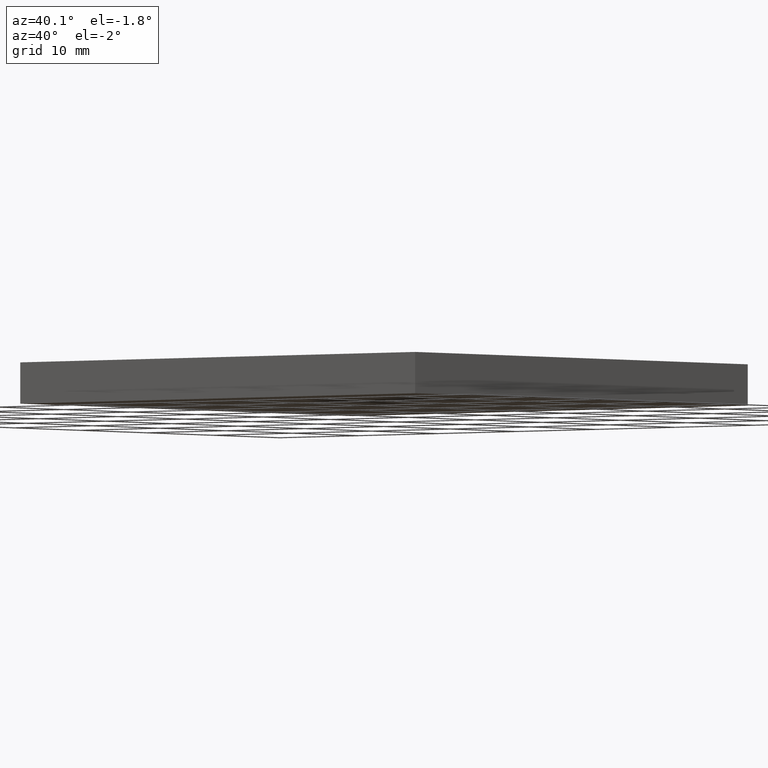
[diagram: clean part render]
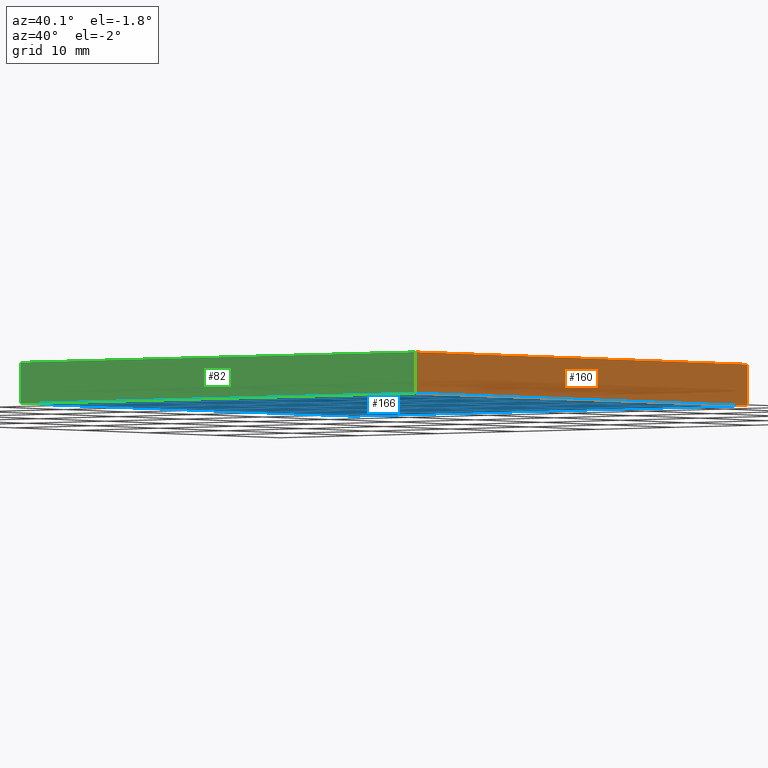
[diagram: same view with three faces highlighted in distinct colors, each labeled with its STEP entity id]
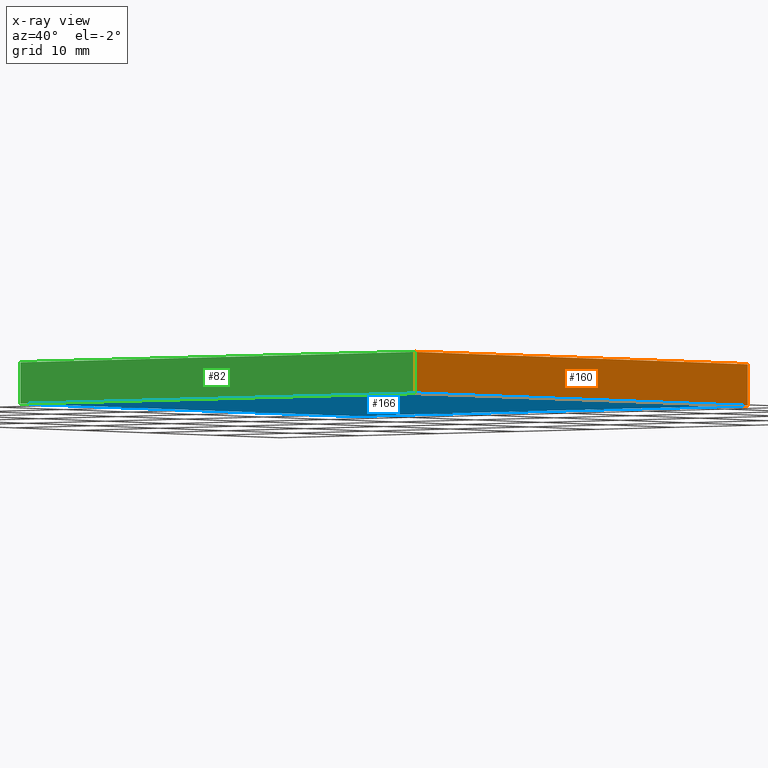
[diagram: x-ray of the same camera — body ghosted, the three highlighted faces saturated]
A machine part, auxiliary view with three faces highlighted in distinct colors.
The next image is the same camera in x-ray (body ghosted, the three faces saturated) — at least one of them is partly hidden behind the body in this view.
Their STEP definitions:

[orange] entity #160 — the highlighted planar face has unit normal (-1, 0, 0).
#2 = EDGE_CURVE ( 'NONE', #37, #93, #5, .T. ) ;
#3 = ORIENTED_EDGE ( 'NONE', *, *, #118, .T. ) ;
#4 = LINE ( 'NONE', #100, #159 ) ;
#5 = LINE ( 'NONE', #7, #144 ) ;
#7 = CARTESIAN_POINT ( 'NONE',  ( 466.6175434576859400, 179.3843025342640100, 4.000000000000000000 ) ) ;
#11 = DIRECTION ( 'NONE',  ( -0.0000000000000000000, 1.000000000000000000, -0.0000000000000000000 ) ) ;
#24 = VECTOR ( 'NONE', #91, 1000.000000000000000 ) ;
#33 = CARTESIAN_POINT ( 'NONE',  ( 466.6175434576859400, 179.3843025342640100, 4.000000000000000000 ) ) ;
#36 = PLANE ( 'NONE',  #55 ) ;
#37 = VERTEX_POINT ( 'NONE', #177 ) ;
#39 = EDGE_LOOP ( 'NONE', ( #87, #149, #124, #3 ) ) ;
#55 = AXIS2_PLACEMENT_3D ( 'NONE', #33, #79, #187 ) ;
#56 = EDGE_CURVE ( 'NONE', #93, #148, #146, .T. ) ;
#63 = CARTESIAN_POINT ( 'NONE',  ( 466.6175434576859400, 129.3843025342640100, 4.000000000000000000 ) ) ;
#67 = CARTESIAN_POINT ( 'NONE',  ( 466.6175434576859400, 179.3843025342640100, 0.0000000000000000000 ) ) ;
#79 = DIRECTION ( 'NONE',  ( -1.000000000000000000, 0.0000000000000000000, 0.0000000000000000000 ) ) ;
#85 = LINE ( 'NONE', #63, #90 ) ;
#87 = ORIENTED_EDGE ( 'NONE', *, *, #170, .T. ) ;
#90 = VECTOR ( 'NONE', #94, 1000.000000000000000 ) ;
#91 = DIRECTION ( 'NONE',  ( -0.0000000000000000000, -0.0000000000000000000, -1.000000000000000000 ) ) ;
#93 = VERTEX_POINT ( 'NONE', #111 ) ;
#94 = DIRECTION ( 'NONE',  ( -0.0000000000000000000, -0.0000000000000000000, -1.000000000000000000 ) ) ;
#97 = DIRECTION ( 'NONE',  ( -0.0000000000000000000, 1.000000000000000000, -0.0000000000000000000 ) ) ;
#100 = CARTESIAN_POINT ( 'NONE',  ( 466.6175434576859400, 179.3843025342640100, 0.0000000000000000000 ) ) ;
#111 = CARTESIAN_POINT ( 'NONE',  ( 466.6175434576859400, 179.3843025342640100, 4.000000000000000000 ) ) ;
#115 = CARTESIAN_POINT ( 'NONE',  ( 466.6175434576859400, 129.3843025342640100, 0.0000000000000000000 ) ) ;
#118 = EDGE_CURVE ( 'NONE', #37, #176, #85, .T. ) ;
#124 = ORIENTED_EDGE ( 'NONE', *, *, #2, .F. ) ;
#144 = VECTOR ( 'NONE', #11, 1000.000000000000000 ) ;
#146 = LINE ( 'NONE', #179, #24 ) ;
#148 = VERTEX_POINT ( 'NONE', #67 ) ;
#149 = ORIENTED_EDGE ( 'NONE', *, *, #56, .F. ) ;
#159 = VECTOR ( 'NONE', #97, 1000.000000000000000 ) ;
#160 = ADVANCED_FACE ( 'NONE', ( #192 ), #36, .F. ) ;
#170 = EDGE_CURVE ( 'NONE', #176, #148, #4, .T. ) ;
#176 = VERTEX_POINT ( 'NONE', #115 ) ;
#177 = CARTESIAN_POINT ( 'NONE',  ( 466.6175434576859400, 129.3843025342640100, 4.000000000000000000 ) ) ;
#179 = CARTESIAN_POINT ( 'NONE',  ( 466.6175434576859400, 179.3843025342640100, 4.000000000000000000 ) ) ;
#187 = DIRECTION ( 'NONE',  ( 0.0000000000000000000, 0.0000000000000000000, 1.000000000000000000 ) ) ;
#192 = FACE_OUTER_BOUND ( 'NONE', #39, .T. ) ;

[blue] entity #166 — the highlighted planar face has unit normal (0, 0, -1).
#4 = LINE ( 'NONE', #100, #159 ) ;
#9 = EDGE_CURVE ( 'NONE', #148, #71, #107, .T. ) ;
#22 = VECTOR ( 'NONE', #165, 1000.000000000000000 ) ;
#26 = CARTESIAN_POINT ( 'NONE',  ( 416.6175434576858800, 179.3843025342640100, 0.0000000000000000000 ) ) ;
#30 = ORIENTED_EDGE ( 'NONE', *, *, #9, .F. ) ;
#34 = DIRECTION ( 'NONE',  ( -0.0000000000000000000, -1.000000000000000000, -0.0000000000000000000 ) ) ;
#60 = CARTESIAN_POINT ( 'NONE',  ( 416.6175434576858800, 179.3843025342640100, 0.0000000000000000000 ) ) ;
#64 = AXIS2_PLACEMENT_3D ( 'NONE', #154, #140, #163 ) ;
#67 = CARTESIAN_POINT ( 'NONE',  ( 466.6175434576859400, 179.3843025342640100, 0.0000000000000000000 ) ) ;
#71 = VERTEX_POINT ( 'NONE', #26 ) ;
#97 = DIRECTION ( 'NONE',  ( -0.0000000000000000000, 1.000000000000000000, -0.0000000000000000000 ) ) ;
#100 = CARTESIAN_POINT ( 'NONE',  ( 466.6175434576859400, 179.3843025342640100, 0.0000000000000000000 ) ) ;
#105 = PLANE ( 'NONE',  #64 ) ;
#107 = LINE ( 'NONE', #60, #169 ) ;
#108 = LINE ( 'NONE', #183, #22 ) ;
#112 = EDGE_LOOP ( 'NONE', ( #156, #191, #30, #136 ) ) ;
#115 = CARTESIAN_POINT ( 'NONE',  ( 466.6175434576859400, 129.3843025342640100, 0.0000000000000000000 ) ) ;
#126 = CARTESIAN_POINT ( 'NONE',  ( 416.6175434576858800, 129.3843025342640100, 0.0000000000000000000 ) ) ;
#128 = CARTESIAN_POINT ( 'NONE',  ( 416.6175434576858800, 154.3843025342640100, 0.0000000000000000000 ) ) ;
#132 = VECTOR ( 'NONE', #34, 1000.000000000000000 ) ;
#136 = ORIENTED_EDGE ( 'NONE', *, *, #170, .F. ) ;
#140 = DIRECTION ( 'NONE',  ( 0.0000000000000000000, 0.0000000000000000000, -1.000000000000000000 ) ) ;
#148 = VERTEX_POINT ( 'NONE', #67 ) ;
#150 = DIRECTION ( 'NONE',  ( -1.000000000000000000, -0.0000000000000000000, -0.0000000000000000000 ) ) ;
#154 = CARTESIAN_POINT ( 'NONE',  ( 0.0000000000000000000, 0.0000000000000000000, 0.0000000000000000000 ) ) ;
#155 = VERTEX_POINT ( 'NONE', #126 ) ;
#156 = ORIENTED_EDGE ( 'NONE', *, *, #172, .F. ) ;
#159 = VECTOR ( 'NONE', #97, 1000.000000000000000 ) ;
#163 = DIRECTION ( 'NONE',  ( -1.000000000000000000, 0.0000000000000000000, -0.0000000000000000000 ) ) ;
#165 = DIRECTION ( 'NONE',  ( 1.000000000000000000, -0.0000000000000000000, -0.0000000000000000000 ) ) ;
#166 = ADVANCED_FACE ( 'NONE', ( #173 ), #105, .T. ) ;
#167 = LINE ( 'NONE', #128, #132 ) ;
#169 = VECTOR ( 'NONE', #150, 1000.000000000000000 ) ;
#170 = EDGE_CURVE ( 'NONE', #176, #148, #4, .T. ) ;
#172 = EDGE_CURVE ( 'NONE', #155, #176, #108, .T. ) ;
#173 = FACE_OUTER_BOUND ( 'NONE', #112, .T. ) ;
#176 = VERTEX_POINT ( 'NONE', #115 ) ;
#183 = CARTESIAN_POINT ( 'NONE',  ( 466.6175434576859400, 129.3843025342640100, 0.0000000000000000000 ) ) ;
#191 = ORIENTED_EDGE ( 'NONE', *, *, #193, .F. ) ;
#193 = EDGE_CURVE ( 'NONE', #71, #155, #167, .T. ) ;

[green] entity #82 — the highlighted planar face has unit normal (0, 1, -0).
#14 = VECTOR ( 'NONE', #81, 1000.000000000000000 ) ;
#21 = FACE_OUTER_BOUND ( 'NONE', #106, .T. ) ;
#22 = VECTOR ( 'NONE', #165, 1000.000000000000000 ) ;
#27 = AXIS2_PLACEMENT_3D ( 'NONE', #75, #28, #109 ) ;
#28 = DIRECTION ( 'NONE',  ( 0.0000000000000000000, 1.000000000000000000, -0.0000000000000000000 ) ) ;
#29 = PLANE ( 'NONE',  #27 ) ;
#37 = VERTEX_POINT ( 'NONE', #177 ) ;
#40 = VERTEX_POINT ( 'NONE', #195 ) ;
#44 = ORIENTED_EDGE ( 'NONE', *, *, #172, .T. ) ;
#57 = VECTOR ( 'NONE', #185, 1000.000000000000000 ) ;
#61 = LINE ( 'NONE', #181, #14 ) ;
#63 = CARTESIAN_POINT ( 'NONE',  ( 466.6175434576859400, 129.3843025342640100, 4.000000000000000000 ) ) ;
#69 = LINE ( 'NONE', #113, #57 ) ;
#73 = ORIENTED_EDGE ( 'NONE', *, *, #118, .F. ) ;
#75 = CARTESIAN_POINT ( 'NONE',  ( 466.6175434576859400, 129.3843025342640100, 4.000000000000000000 ) ) ;
#76 = ORIENTED_EDGE ( 'NONE', *, *, #120, .F. ) ;
#81 = DIRECTION ( 'NONE',  ( -0.0000000000000000000, -0.0000000000000000000, -1.000000000000000000 ) ) ;
#82 = ADVANCED_FACE ( 'NONE', ( #21 ), #29, .F. ) ;
#85 = LINE ( 'NONE', #63, #90 ) ;
#90 = VECTOR ( 'NONE', #94, 1000.000000000000000 ) ;
#94 = DIRECTION ( 'NONE',  ( -0.0000000000000000000, -0.0000000000000000000, -1.000000000000000000 ) ) ;
#106 = EDGE_LOOP ( 'NONE', ( #44, #73, #76, #116 ) ) ;
#108 = LINE ( 'NONE', #183, #22 ) ;
#109 = DIRECTION ( 'NONE',  ( 0.0000000000000000000, 0.0000000000000000000, 1.000000000000000000 ) ) ;
#113 = CARTESIAN_POINT ( 'NONE',  ( 466.6175434576859400, 129.3843025342640100, 4.000000000000000000 ) ) ;
#115 = CARTESIAN_POINT ( 'NONE',  ( 466.6175434576859400, 129.3843025342640100, 0.0000000000000000000 ) ) ;
#116 = ORIENTED_EDGE ( 'NONE', *, *, #190, .T. ) ;
#118 = EDGE_CURVE ( 'NONE', #37, #176, #85, .T. ) ;
#120 = EDGE_CURVE ( 'NONE', #40, #37, #69, .T. ) ;
#126 = CARTESIAN_POINT ( 'NONE',  ( 416.6175434576858800, 129.3843025342640100, 0.0000000000000000000 ) ) ;
#155 = VERTEX_POINT ( 'NONE', #126 ) ;
#165 = DIRECTION ( 'NONE',  ( 1.000000000000000000, -0.0000000000000000000, -0.0000000000000000000 ) ) ;
#172 = EDGE_CURVE ( 'NONE', #155, #176, #108, .T. ) ;
#176 = VERTEX_POINT ( 'NONE', #115 ) ;
#177 = CARTESIAN_POINT ( 'NONE',  ( 466.6175434576859400, 129.3843025342640100, 4.000000000000000000 ) ) ;
#181 = CARTESIAN_POINT ( 'NONE',  ( 416.6175434576858800, 129.3843025342640100, 4.000000000000000000 ) ) ;
#183 = CARTESIAN_POINT ( 'NONE',  ( 466.6175434576859400, 129.3843025342640100, 0.0000000000000000000 ) ) ;
#185 = DIRECTION ( 'NONE',  ( 1.000000000000000000, -0.0000000000000000000, -0.0000000000000000000 ) ) ;
#190 = EDGE_CURVE ( 'NONE', #40, #155, #61, .T. ) ;
#195 = CARTESIAN_POINT ( 'NONE',  ( 416.6175434576858800, 129.3843025342640100, 4.000000000000000000 ) ) ;